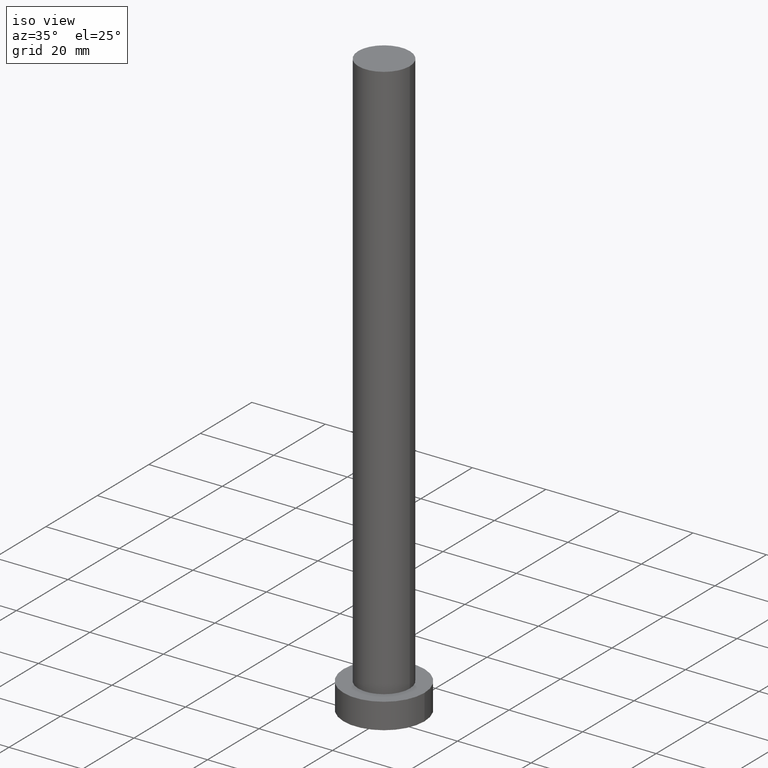
[diagram: clean part render]
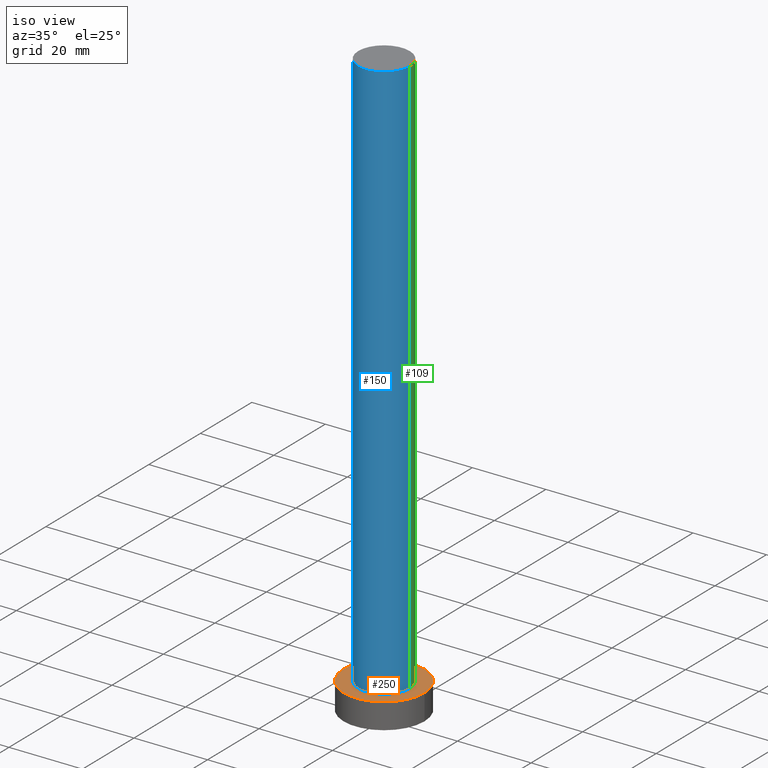
[diagram: same view with three faces highlighted in distinct colors, each labeled with its STEP entity id]
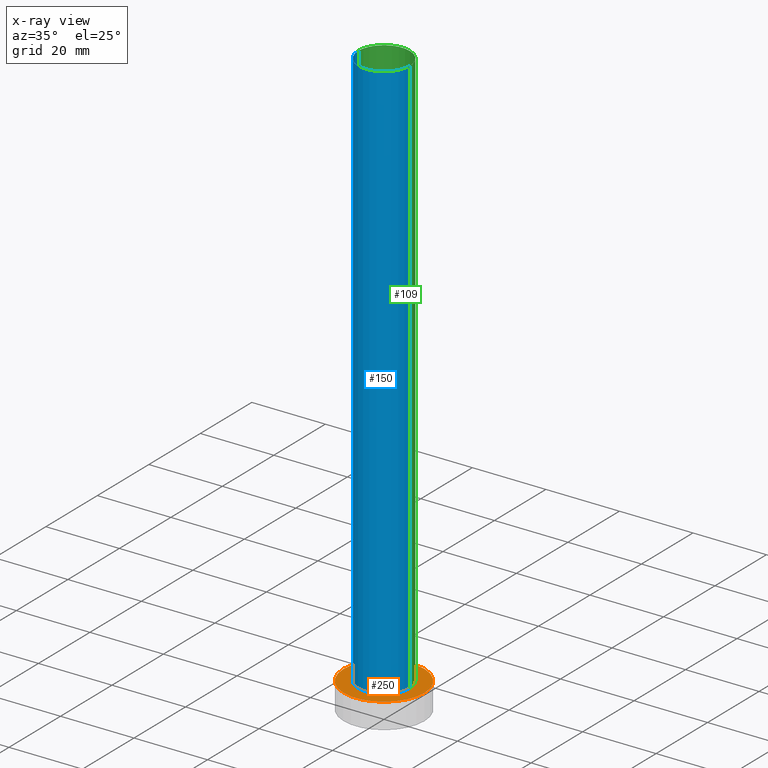
[diagram: x-ray of the same camera — body ghosted, the three highlighted faces saturated]
A machine part, iso view with three faces highlighted in distinct colors.
The next image is the same camera in x-ray (body ghosted, the three faces saturated) — at least one of them is partly hidden behind the body in this view.
Their STEP definitions:

[orange] entity #250 — the highlighted planar face has unit normal (0, 0, 1).
#1 = ORIENTED_EDGE ( 'NONE', *, *, #249, .T. ) ;
#5 = ORIENTED_EDGE ( 'NONE', *, *, #222, .F. ) ;
#17 = DIRECTION ( 'NONE',  ( 1.000000000000000000, 0.000000000000000000, -0.000000000000000000 ) ) ;
#36 = FACE_BOUND ( 'NONE', #112, .T. ) ;
#55 = CARTESIAN_POINT ( 'NONE',  ( 7.000000000000000888, 8.572527594031474176E-16, 7.000000000000000000 ) ) ;
#59 = EDGE_CURVE ( 'NONE', #111, #161, #246, .T. ) ;
#66 = CARTESIAN_POINT ( 'NONE',  ( 0.000000000000000000, 0.000000000000000000, 7.000000000000000000 ) ) ;
#74 = CARTESIAN_POINT ( 'NONE',  ( 0.000000000000000000, 0.000000000000000000, 7.000000000000000000 ) ) ;
#75 = EDGE_CURVE ( 'NONE', #144, #197, #106, .T. ) ;
#79 = DIRECTION ( 'NONE',  ( 1.000000000000000000, 0.000000000000000000, 0.000000000000000000 ) ) ;
#85 = AXIS2_PLACEMENT_3D ( 'NONE', #152, #92, #17 ) ;
#86 = DIRECTION ( 'NONE',  ( 0.000000000000000000, 0.000000000000000000, 1.000000000000000000 ) ) ;
#92 = DIRECTION ( 'NONE',  ( 0.000000000000000000, 0.000000000000000000, 1.000000000000000000 ) ) ;
#93 = DIRECTION ( 'NONE',  ( 1.000000000000000000, 0.000000000000000000, 0.000000000000000000 ) ) ;
#106 = CIRCLE ( 'NONE', #119, 7.000000000000000888 ) ;
#107 = DIRECTION ( 'NONE',  ( 1.000000000000000000, 0.000000000000000000, 0.000000000000000000 ) ) ;
#110 = DIRECTION ( 'NONE',  ( 0.000000000000000000, 0.000000000000000000, 1.000000000000000000 ) ) ;
#111 = VERTEX_POINT ( 'NONE', #136 ) ;
#112 = EDGE_LOOP ( 'NONE', ( #198, #5 ) ) ;
#119 = AXIS2_PLACEMENT_3D ( 'NONE', #123, #86, #165 ) ;
#123 = CARTESIAN_POINT ( 'NONE',  ( 0.000000000000000000, 0.000000000000000000, 7.000000000000000000 ) ) ;
#124 = AXIS2_PLACEMENT_3D ( 'NONE', #130, #194, #93 ) ;
#130 = CARTESIAN_POINT ( 'NONE',  ( 0.000000000000000000, 0.000000000000000000, 7.000000000000000000 ) ) ;
#136 = CARTESIAN_POINT ( 'NONE',  ( -11.00000000000000000, 0.000000000000000000, 7.000000000000000000 ) ) ;
#144 = VERTEX_POINT ( 'NONE', #226 ) ;
#151 = ORIENTED_EDGE ( 'NONE', *, *, #59, .T. ) ;
#152 = CARTESIAN_POINT ( 'NONE',  ( 0.000000000000000000, 0.000000000000000000, 7.000000000000000000 ) ) ;
#160 = AXIS2_PLACEMENT_3D ( 'NONE', #66, #230, #107 ) ;
#161 = VERTEX_POINT ( 'NONE', #185 ) ;
#162 = AXIS2_PLACEMENT_3D ( 'NONE', #74, #110, #79 ) ;
#165 = DIRECTION ( 'NONE',  ( 1.000000000000000000, 0.000000000000000000, 0.000000000000000000 ) ) ;
#185 = CARTESIAN_POINT ( 'NONE',  ( 11.00000000000000000, 1.347111479062088405E-15, 7.000000000000000000 ) ) ;
#190 = PLANE ( 'NONE',  #85 ) ;
#194 = DIRECTION ( 'NONE',  ( 0.000000000000000000, 0.000000000000000000, 1.000000000000000000 ) ) ;
#197 = VERTEX_POINT ( 'NONE', #55 ) ;
#198 = ORIENTED_EDGE ( 'NONE', *, *, #75, .F. ) ;
#205 = CIRCLE ( 'NONE', #162, 11.00000000000000000 ) ;
#219 = EDGE_LOOP ( 'NONE', ( #151, #1 ) ) ;
#222 = EDGE_CURVE ( 'NONE', #197, #144, #248, .T. ) ;
#226 = CARTESIAN_POINT ( 'NONE',  ( -7.000000000000000888, 0.000000000000000000, 7.000000000000000000 ) ) ;
#230 = DIRECTION ( 'NONE',  ( 0.000000000000000000, 0.000000000000000000, 1.000000000000000000 ) ) ;
#233 = FACE_OUTER_BOUND ( 'NONE', #219, .T. ) ;
#246 = CIRCLE ( 'NONE', #160, 11.00000000000000000 ) ;
#248 = CIRCLE ( 'NONE', #124, 7.000000000000000888 ) ;
#249 = EDGE_CURVE ( 'NONE', #161, #111, #205, .T. ) ;
#250 = ADVANCED_FACE ( 'NONE', ( #36, #233 ), #190, .T. ) ;

[blue] entity #150 — the highlighted cylindrical surface (edge-blend (fillet) strip) has radius 7 mm, axis along (-0, -0, -1).
#11 = DIRECTION ( 'NONE',  ( 0.000000000000000000, 0.000000000000000000, 1.000000000000000000 ) ) ;
#18 = EDGE_LOOP ( 'NONE', ( #95, #172, #225, #134 ) ) ;
#21 = VERTEX_POINT ( 'NONE', #83 ) ;
#23 = CARTESIAN_POINT ( 'NONE',  ( 7.000000000000000888, 8.572527594031474176E-16, 160.0000000000000000 ) ) ;
#29 = FACE_OUTER_BOUND ( 'NONE', #18, .T. ) ;
#30 = EDGE_CURVE ( 'NONE', #21, #197, #61, .T. ) ;
#31 = VECTOR ( 'NONE', #156, 1000.000000000000000 ) ;
#32 = CARTESIAN_POINT ( 'NONE',  ( -7.000000000000000888, 0.000000000000000000, 160.0000000000000000 ) ) ;
#33 = AXIS2_PLACEMENT_3D ( 'NONE', #121, #11, #251 ) ;
#50 = DIRECTION ( 'NONE',  ( -1.000000000000000000, 0.000000000000000000, 0.000000000000000000 ) ) ;
#55 = CARTESIAN_POINT ( 'NONE',  ( 7.000000000000000888, 8.572527594031474176E-16, 7.000000000000000000 ) ) ;
#61 = LINE ( 'NONE', #23, #31 ) ;
#75 = EDGE_CURVE ( 'NONE', #144, #197, #106, .T. ) ;
#83 = CARTESIAN_POINT ( 'NONE',  ( 7.000000000000000888, 8.572527594031474176E-16, 160.0000000000000000 ) ) ;
#86 = DIRECTION ( 'NONE',  ( 0.000000000000000000, 0.000000000000000000, 1.000000000000000000 ) ) ;
#95 = ORIENTED_EDGE ( 'NONE', *, *, #30, .F. ) ;
#97 = VERTEX_POINT ( 'NONE', #203 ) ;
#100 = DIRECTION ( 'NONE',  ( -0.000000000000000000, -0.000000000000000000, -1.000000000000000000 ) ) ;
#105 = DIRECTION ( 'NONE',  ( -0.000000000000000000, -0.000000000000000000, -1.000000000000000000 ) ) ;
#106 = CIRCLE ( 'NONE', #119, 7.000000000000000888 ) ;
#115 = VECTOR ( 'NONE', #100, 1000.000000000000000 ) ;
#119 = AXIS2_PLACEMENT_3D ( 'NONE', #123, #86, #165 ) ;
#121 = CARTESIAN_POINT ( 'NONE',  ( 0.000000000000000000, 0.000000000000000000, 160.0000000000000000 ) ) ;
#123 = CARTESIAN_POINT ( 'NONE',  ( 0.000000000000000000, 0.000000000000000000, 7.000000000000000000 ) ) ;
#134 = ORIENTED_EDGE ( 'NONE', *, *, #75, .T. ) ;
#141 = CARTESIAN_POINT ( 'NONE',  ( 0.000000000000000000, 0.000000000000000000, 160.0000000000000000 ) ) ;
#144 = VERTEX_POINT ( 'NONE', #226 ) ;
#150 = ADVANCED_FACE ( 'NONE', ( #29 ), #229, .T. ) ;
#156 = DIRECTION ( 'NONE',  ( -0.000000000000000000, -0.000000000000000000, -1.000000000000000000 ) ) ;
#163 = EDGE_CURVE ( 'NONE', #97, #21, #221, .T. ) ;
#165 = DIRECTION ( 'NONE',  ( 1.000000000000000000, 0.000000000000000000, 0.000000000000000000 ) ) ;
#172 = ORIENTED_EDGE ( 'NONE', *, *, #163, .F. ) ;
#173 = EDGE_CURVE ( 'NONE', #97, #144, #204, .T. ) ;
#180 = AXIS2_PLACEMENT_3D ( 'NONE', #141, #105, #50 ) ;
#197 = VERTEX_POINT ( 'NONE', #55 ) ;
#203 = CARTESIAN_POINT ( 'NONE',  ( -7.000000000000000888, 0.000000000000000000, 160.0000000000000000 ) ) ;
#204 = LINE ( 'NONE', #32, #115 ) ;
#221 = CIRCLE ( 'NONE', #33, 7.000000000000000888 ) ;
#225 = ORIENTED_EDGE ( 'NONE', *, *, #173, .T. ) ;
#226 = CARTESIAN_POINT ( 'NONE',  ( -7.000000000000000888, 0.000000000000000000, 7.000000000000000000 ) ) ;
#229 = CYLINDRICAL_SURFACE ( 'NONE', #180, 7.000000000000000888 ) ;
#251 = DIRECTION ( 'NONE',  ( 1.000000000000000000, 0.000000000000000000, 0.000000000000000000 ) ) ;

[green] entity #109 — the highlighted cylindrical surface (edge-blend (fillet) strip) has radius 7 mm, axis along (-0, -0, -1).
#21 = VERTEX_POINT ( 'NONE', #83 ) ;
#23 = CARTESIAN_POINT ( 'NONE',  ( 7.000000000000000888, 8.572527594031474176E-16, 160.0000000000000000 ) ) ;
#24 = DIRECTION ( 'NONE',  ( 0.000000000000000000, 0.000000000000000000, 1.000000000000000000 ) ) ;
#26 = ORIENTED_EDGE ( 'NONE', *, *, #35, .F. ) ;
#30 = EDGE_CURVE ( 'NONE', #21, #197, #61, .T. ) ;
#31 = VECTOR ( 'NONE', #156, 1000.000000000000000 ) ;
#32 = CARTESIAN_POINT ( 'NONE',  ( -7.000000000000000888, 0.000000000000000000, 160.0000000000000000 ) ) ;
#35 = EDGE_CURVE ( 'NONE', #21, #97, #148, .T. ) ;
#45 = CARTESIAN_POINT ( 'NONE',  ( 0.000000000000000000, 0.000000000000000000, 160.0000000000000000 ) ) ;
#51 = CARTESIAN_POINT ( 'NONE',  ( 0.000000000000000000, 0.000000000000000000, 160.0000000000000000 ) ) ;
#55 = CARTESIAN_POINT ( 'NONE',  ( 7.000000000000000888, 8.572527594031474176E-16, 7.000000000000000000 ) ) ;
#58 = AXIS2_PLACEMENT_3D ( 'NONE', #45, #24, #98 ) ;
#61 = LINE ( 'NONE', #23, #31 ) ;
#67 = DIRECTION ( 'NONE',  ( -0.000000000000000000, -0.000000000000000000, -1.000000000000000000 ) ) ;
#68 = FACE_OUTER_BOUND ( 'NONE', #133, .T. ) ;
#83 = CARTESIAN_POINT ( 'NONE',  ( 7.000000000000000888, 8.572527594031474176E-16, 160.0000000000000000 ) ) ;
#93 = DIRECTION ( 'NONE',  ( 1.000000000000000000, 0.000000000000000000, 0.000000000000000000 ) ) ;
#97 = VERTEX_POINT ( 'NONE', #203 ) ;
#98 = DIRECTION ( 'NONE',  ( 1.000000000000000000, 0.000000000000000000, 0.000000000000000000 ) ) ;
#100 = DIRECTION ( 'NONE',  ( -0.000000000000000000, -0.000000000000000000, -1.000000000000000000 ) ) ;
#109 = ADVANCED_FACE ( 'NONE', ( #68 ), #252, .T. ) ;
#115 = VECTOR ( 'NONE', #100, 1000.000000000000000 ) ;
#124 = AXIS2_PLACEMENT_3D ( 'NONE', #130, #194, #93 ) ;
#130 = CARTESIAN_POINT ( 'NONE',  ( 0.000000000000000000, 0.000000000000000000, 7.000000000000000000 ) ) ;
#133 = EDGE_LOOP ( 'NONE', ( #26, #237, #154, #245 ) ) ;
#144 = VERTEX_POINT ( 'NONE', #226 ) ;
#148 = CIRCLE ( 'NONE', #58, 7.000000000000000888 ) ;
#154 = ORIENTED_EDGE ( 'NONE', *, *, #222, .T. ) ;
#156 = DIRECTION ( 'NONE',  ( -0.000000000000000000, -0.000000000000000000, -1.000000000000000000 ) ) ;
#173 = EDGE_CURVE ( 'NONE', #97, #144, #204, .T. ) ;
#194 = DIRECTION ( 'NONE',  ( 0.000000000000000000, 0.000000000000000000, 1.000000000000000000 ) ) ;
#197 = VERTEX_POINT ( 'NONE', #55 ) ;
#203 = CARTESIAN_POINT ( 'NONE',  ( -7.000000000000000888, 0.000000000000000000, 160.0000000000000000 ) ) ;
#204 = LINE ( 'NONE', #32, #115 ) ;
#208 = DIRECTION ( 'NONE',  ( -1.000000000000000000, 0.000000000000000000, 0.000000000000000000 ) ) ;
#213 = AXIS2_PLACEMENT_3D ( 'NONE', #51, #67, #208 ) ;
#222 = EDGE_CURVE ( 'NONE', #197, #144, #248, .T. ) ;
#226 = CARTESIAN_POINT ( 'NONE',  ( -7.000000000000000888, 0.000000000000000000, 7.000000000000000000 ) ) ;
#237 = ORIENTED_EDGE ( 'NONE', *, *, #30, .T. ) ;
#245 = ORIENTED_EDGE ( 'NONE', *, *, #173, .F. ) ;
#248 = CIRCLE ( 'NONE', #124, 7.000000000000000888 ) ;
#252 = CYLINDRICAL_SURFACE ( 'NONE', #213, 7.000000000000000888 ) ;